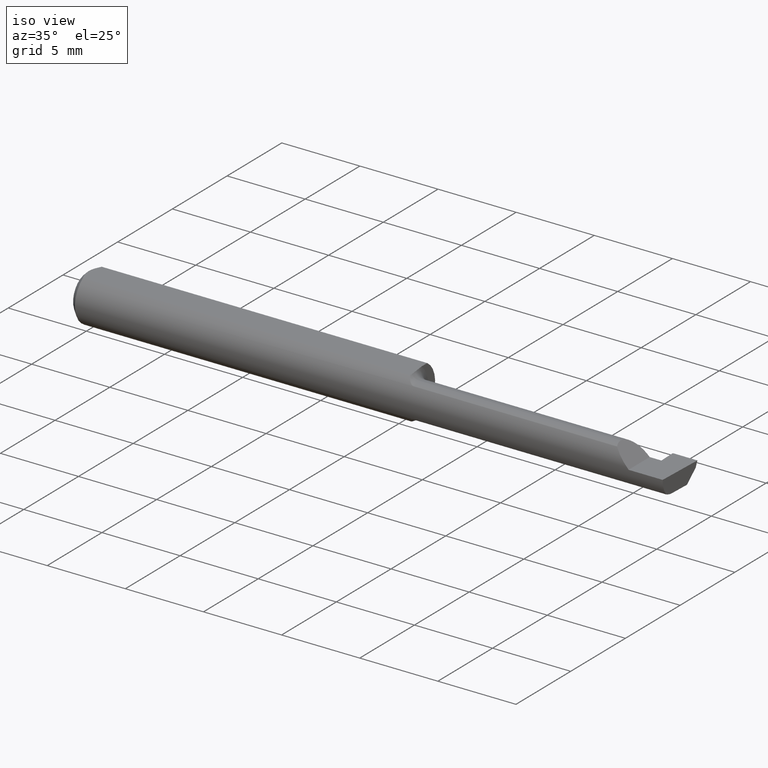
[diagram: clean part render]
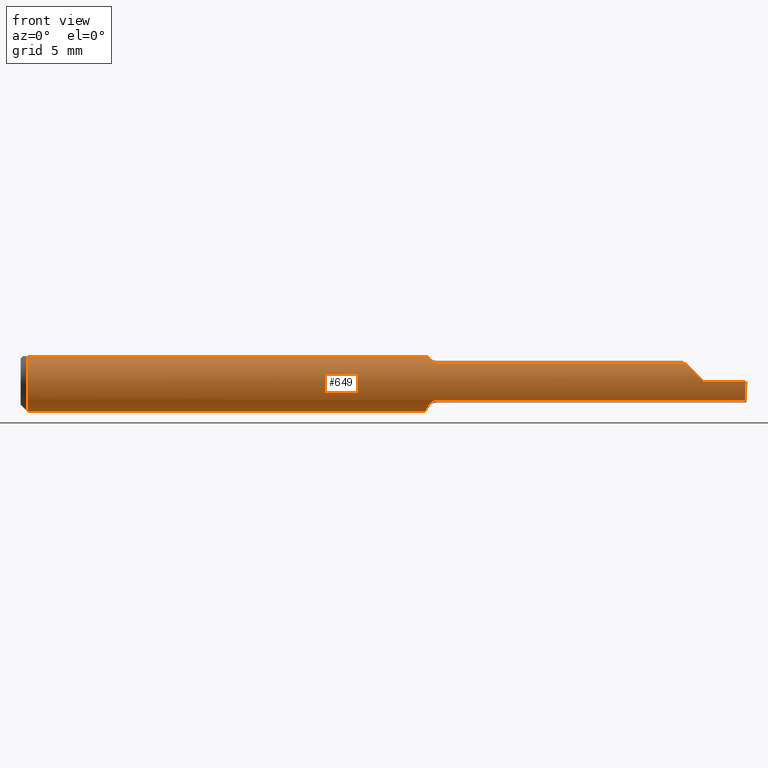
[diagram: tour spotlight — one face highlighted and labeled with its STEP entity id]
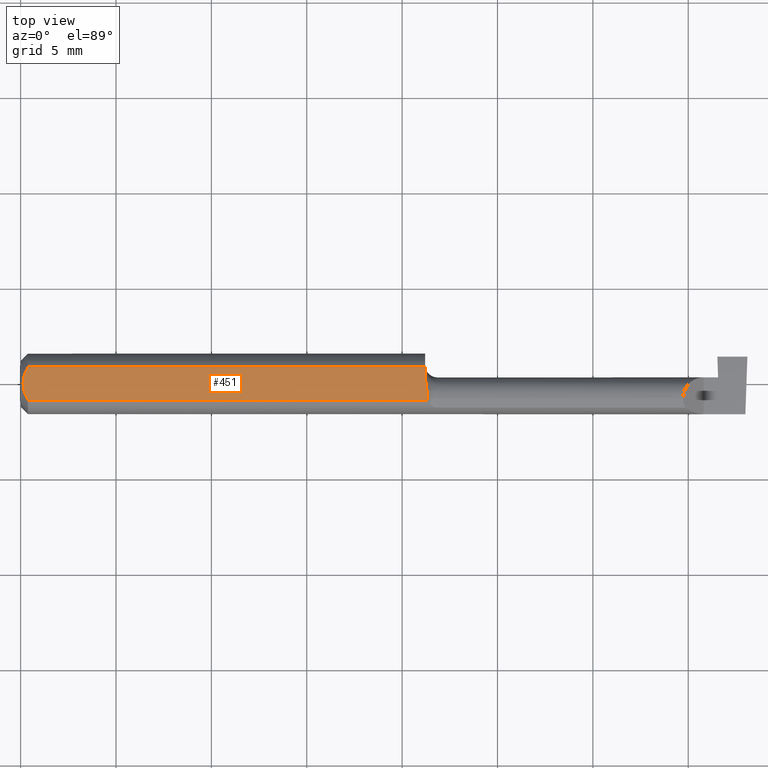
[diagram: tour spotlight — one face highlighted and labeled with its STEP entity id]
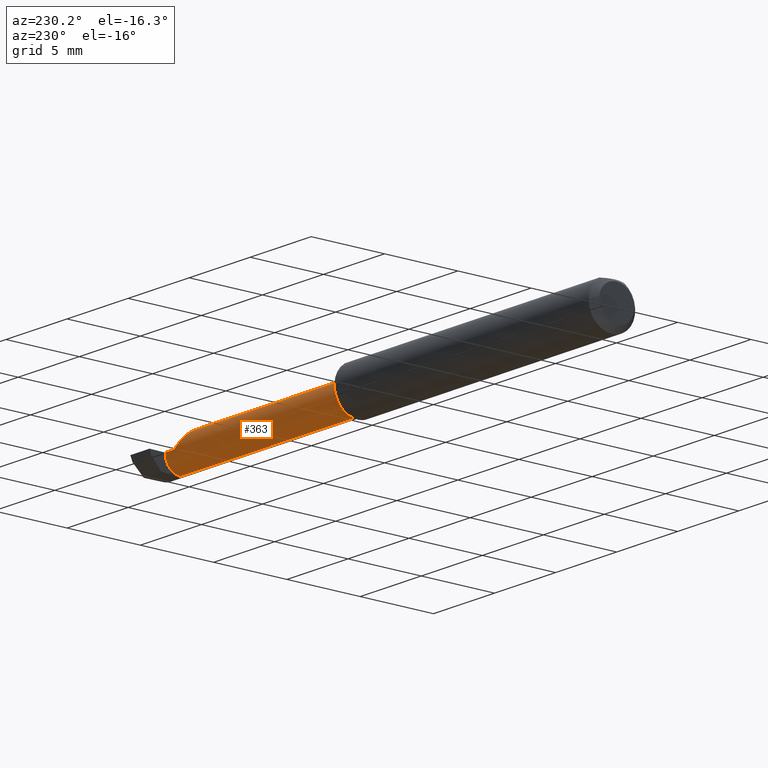
[diagram: tour spotlight — one face highlighted and labeled with its STEP entity id]
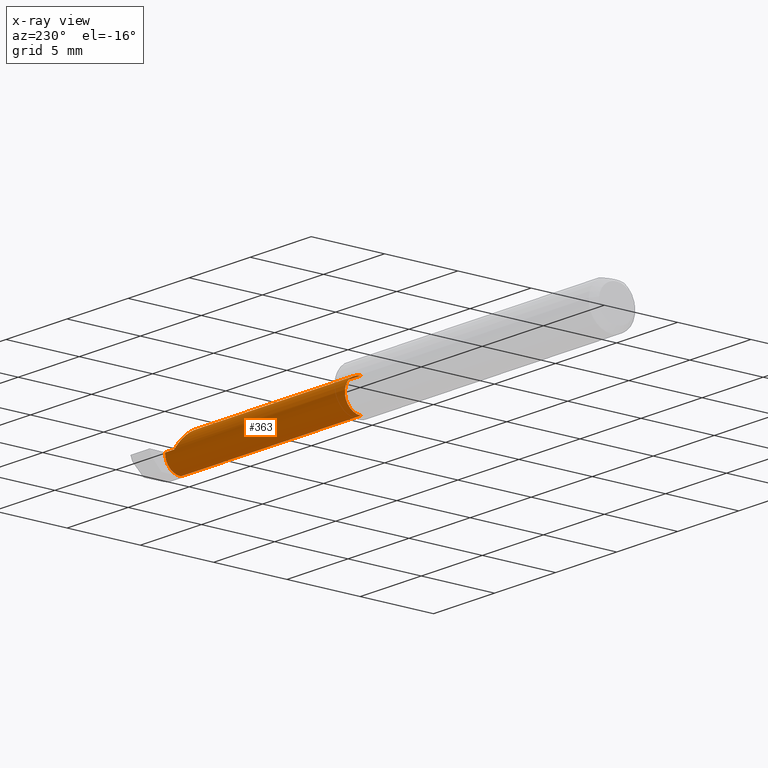
[diagram: x-ray of the same camera — body ghosted, this tour face saturated]
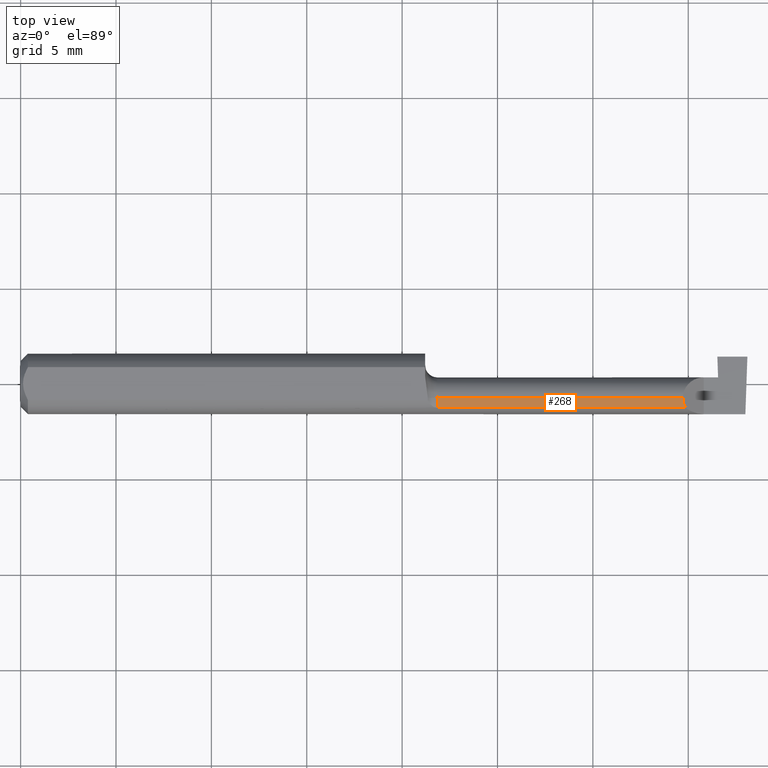
[diagram: tour spotlight — one face highlighted and labeled with its STEP entity id]
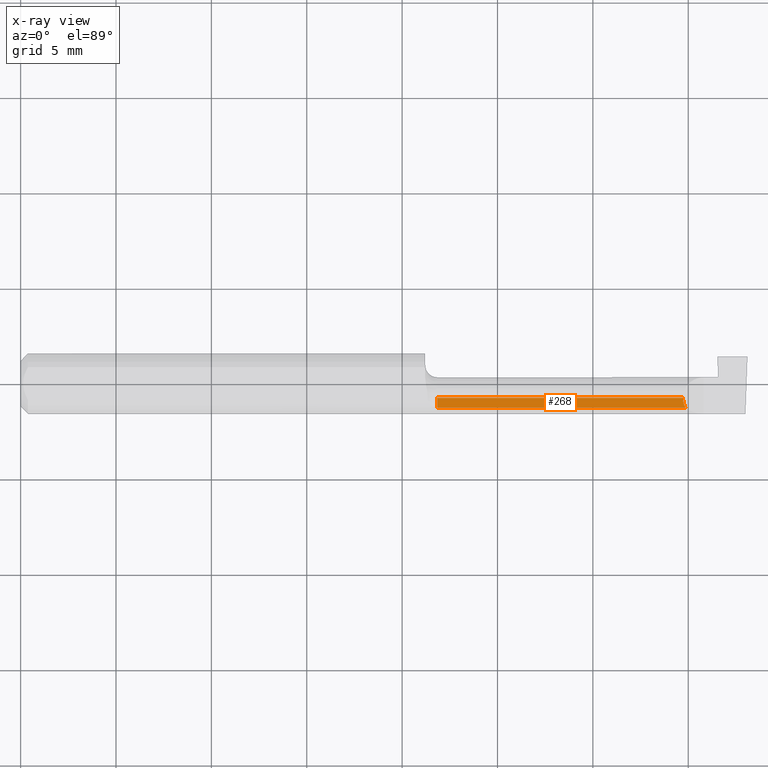
[diagram: x-ray of the same camera — body ghosted, this tour face saturated]
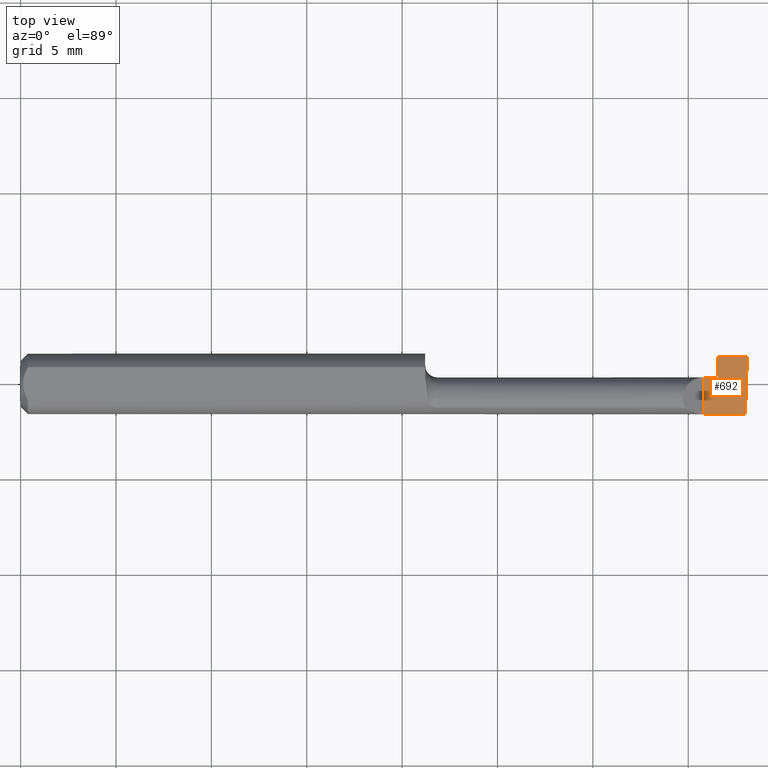
[diagram: tour spotlight — one face highlighted and labeled with its STEP entity id]
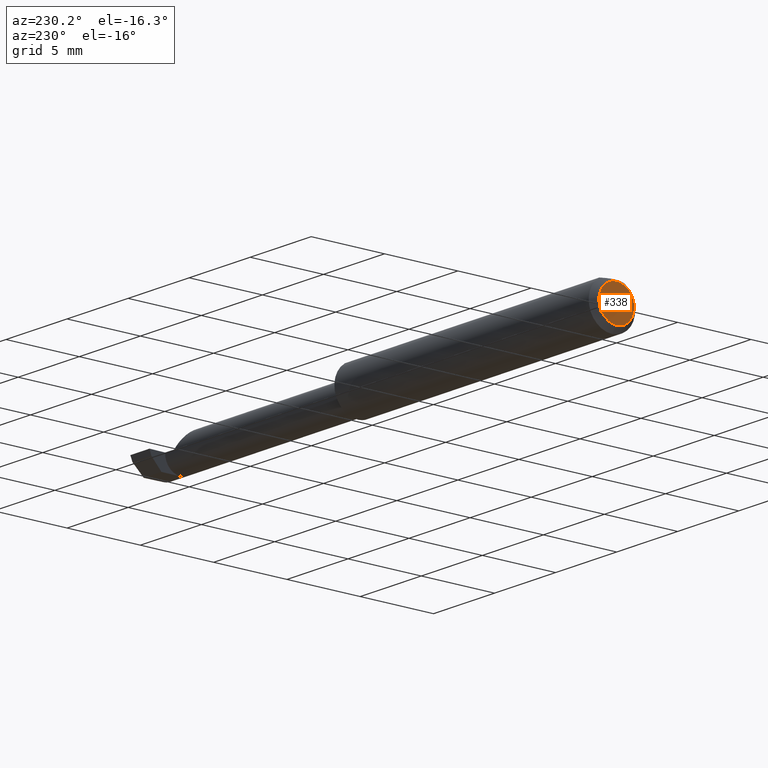
[diagram: tour spotlight — one face highlighted and labeled with its STEP entity id]
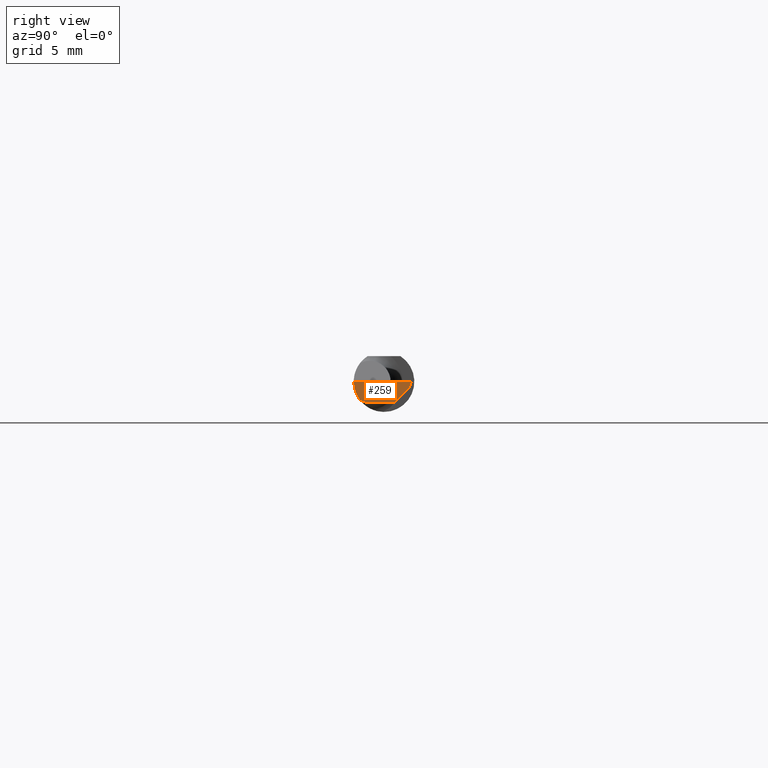
[diagram: tour spotlight — one face highlighted and labeled with its STEP entity id]
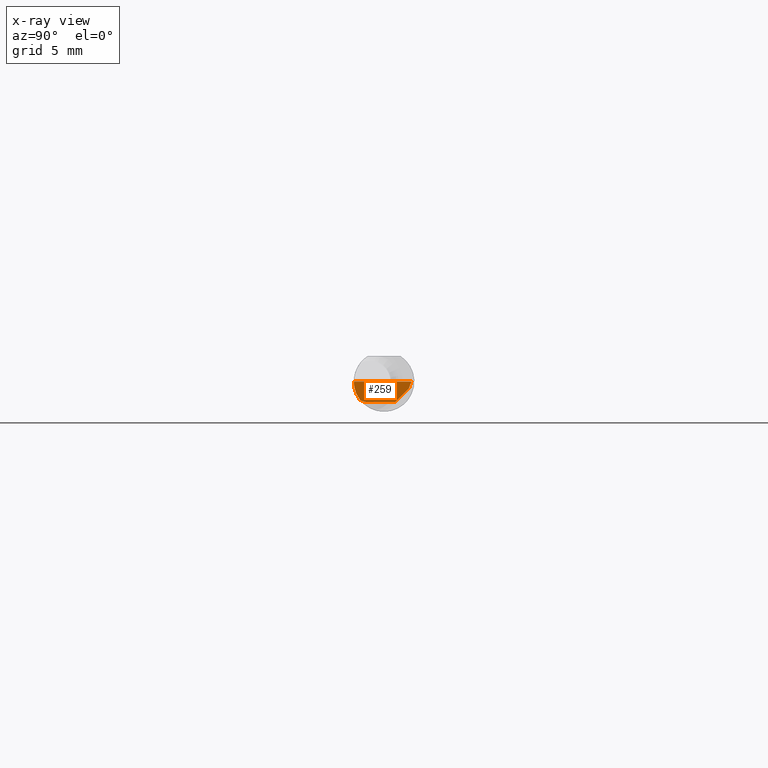
[diagram: x-ray of the same camera — body ghosted, this tour face saturated]
A machine part: a face-by-face anatomy tour. The part has 20 B-rep faces; the first image is the clean iso view, then the 7 largest visible faces are spotlighted one at a time (largest first), each with its STEP entity span.

Face 1 — front view, entity #649. In plain terms, the highlighted cylindrical surface (edge-blend (fillet) strip) has radius 1.5875 mm, axis along (-1, -0, -0).
Definition (entity closure, byte-faithful):
#15 = B_SPLINE_CURVE_WITH_KNOTS ( 'NONE', 3,
 ( #288, #283, #505, #170, #275, #552, #679, #543 ),
 .UNSPECIFIED., .F., .F.,
 ( 4, 2, 2, 4 ),
 ( 1.967049449814725034E-07, 0.0002302603140701875353, 0.0004603239231953935623, 0.0009204511414458118506 ),
 .UNSPECIFIED. ) ;
#19 = CARTESIAN_POINT ( 'NONE',  ( 0.8349999999999998535, -0.007349427763250804095, -0.06224931325325608333 ) ) ;
#20 =( BOUNDED_CURVE ( )  B_SPLINE_CURVE ( 3, ( #385, #614, #506, #284 ),
 .UNSPECIFIED., .F., .F. ) 
 B_SPLINE_CURVE_WITH_KNOTS ( ( 4, 4 ),
 ( 6.273290845822960371, 6.925979714601155912 ),
 .UNSPECIFIED. ) 
 CURVE ( )  GEOMETRIC_REPRESENTATION_ITEM ( )  RATIONAL_B_SPLINE_CURVE ( ( 1.000000000000000000, 0.9648137202604427642, 0.9648137202604427642, 1.000000000000000000 ) ) 
 REPRESENTATION_ITEM ( '' )  );
#29 = EDGE_CURVE ( 'NONE', #681, #83, #429, .T. ) ;
#40 = AXIS2_PLACEMENT_3D ( 'NONE', #687, #314, #201 ) ;
#46 = CARTESIAN_POINT ( 'NONE',  ( 0.8349999999999999645, 0.03391164991562634068, 0.05250000000000000500 ) ) ;
#49 = CIRCLE ( 'NONE', #40, 0.06250000000000000000 ) ;
#50 = EDGE_CURVE ( 'NONE', #632, #462, #211, .T. ) ;
#51 = LINE ( 'NONE', #158, #324 ) ;
#52 = VERTEX_POINT ( 'NONE', #530 ) ;
#53 = CARTESIAN_POINT ( 'NONE',  ( 1.149000000000000021, -0.04961864406779661202, 0.03800315988011145063 ) ) ;
#54 = CARTESIAN_POINT ( 'NONE',  ( 0.8420045765340889998, -0.03797736612365415487, 0.04987380676756331122 ) ) ;
#79 = VERTEX_POINT ( 'NONE', #172 ) ;
#83 = VERTEX_POINT ( 'NONE', #222 ) ;
#87 = CARTESIAN_POINT ( 'NONE',  ( 2.249639673992780117E-32, -0.06250000000000000000, 1.836970198721027469E-16 ) ) ;
#92 = CARTESIAN_POINT ( 'NONE',  ( 0.8352519097259802905, -0.01202796067517315250, -0.06151168109569451342 ) ) ;
#93 = ORIENTED_EDGE ( 'NONE', *, *, #274, .F. ) ;
#94 =( BOUNDED_CURVE ( )  B_SPLINE_CURVE ( 3, ( #472, #272, #419, #427 ),
 .UNSPECIFIED., .F., .T. ) 
 B_SPLINE_CURVE_WITH_KNOTS ( ( 4, 4 ),
 ( 4.712388980384689674, 5.365991724391927953 ),
 .UNSPECIFIED. ) 
 CURVE ( )  GEOMETRIC_REPRESENTATION_ITEM ( )  RATIONAL_B_SPLINE_CURVE ( ( 1.000000000000000000, 0.9647159968557095233, 0.9647159968557095233, 1.000000000000000000 ) ) 
 REPRESENTATION_ITEM ( '' )  );
#98 = CARTESIAN_POINT ( 'NONE',  ( 0.8573935569295082493, -0.04961864406782530434, 0.03800315988007407081 ) ) ;
#100 = VERTEX_POINT ( 'NONE', #390 ) ;
#111 = LINE ( 'NONE', #53, #648 ) ;
#112 = DIRECTION ( 'NONE',  ( 0.02616100201822768243, -0.0009135623211514313276, 0.9996573249755575929 ) ) ;
#122 = CARTESIAN_POINT ( 'NONE',  ( 1.495842932763845390, -0.06249997390100387601, -5.711719386471155157E-05 ) ) ;
#124 = EDGE_CURVE ( 'NONE', #681, #549, #20, .T. ) ;
#141 = VECTOR ( 'NONE', #653, 39.37007874015748143 ) ;
#148 = ORIENTED_EDGE ( 'NONE', *, *, #367, .T. ) ;
#152 = ORIENTED_EDGE ( 'NONE', *, *, #560, .F. ) ;
#158 = CARTESIAN_POINT ( 'NONE',  ( 0.000000000000000000, -0.03391164991562636150, 0.05249999999999998418 ) ) ;
#159 = ORIENTED_EDGE ( 'NONE', *, *, #234, .F. ) ;
#170 = CARTESIAN_POINT ( 'NONE',  ( 0.8493582107592305697, -0.04628042898199348498, -0.04204840831133670881 ) ) ;
#172 = CARTESIAN_POINT ( 'NONE',  ( 1.371996840119888761, -0.04961864406779655651, 0.03800315988011148532 ) ) ;
#178 = ORIENTED_EDGE ( 'NONE', *, *, #50, .F. ) ;
#180 = CYLINDRICAL_SURFACE ( 'NONE', #401, 0.06250000000000000000 ) ;
#185 = CARTESIAN_POINT ( 'NONE',  ( 0.01499999999999999944, 0.000000000000000000, 0.000000000000000000 ) ) ;
#191 = EDGE_CURVE ( 'NONE', #549, #312, #298, .T. ) ;
#193 = DIRECTION ( 'NONE',  ( -1.000000000000000000, -0.000000000000000000, -0.000000000000000000 ) ) ;
#196 = CARTESIAN_POINT ( 'NONE',  ( 1.495298500941084185, -0.04961864406779661202, -0.03800315988011145063 ) ) ;
#197 = CARTESIAN_POINT ( 'NONE',  ( 0.8349999999999999645, -0.002584745762711872230, -0.06244652984227500730 ) ) ;
#201 = DIRECTION ( 'NONE',  ( 0.000000000000000000, 0.000000000000000000, -1.000000000000000000 ) ) ;
#209 = AXIS2_PLACEMENT_3D ( 'NONE', #417, #193, #642 ) ;
#211 = B_SPLINE_CURVE_WITH_KNOTS ( 'NONE', 3,
 ( #709, #54, #276, #488, #372, #589, #98, #319 ),
 .UNSPECIFIED., .F., .F.,
 ( 4, 2, 2, 4 ),
 ( 3.888235372658501606E-07, 0.0003893917635814275247, 0.0005838932336035082158, 0.0007783947036255888527 ),
 .UNSPECIFIED. ) ;
#219 = ORIENTED_EDGE ( 'NONE', *, *, #615, .F. ) ;
#220 = CARTESIAN_POINT ( 'NONE',  ( 0.000000000000000000, 0.000000000000000000, 0.000000000000000000 ) ) ;
#222 = CARTESIAN_POINT ( 'NONE',  ( 0.8600000000000000977, -0.04961864406779661202, -0.03800315988011145063 ) ) ;
#229 = CARTESIAN_POINT ( 'NONE',  ( 0.8402401474686986838, -0.03391164991562650721, 0.05250000000000000500 ) ) ;
#232 = ORIENTED_EDGE ( 'NONE', *, *, #310, .T. ) ;
#234 = EDGE_CURVE ( 'NONE', #258, #374, #49, .T. ) ;
#235 = FACE_OUTER_BOUND ( 'NONE', #493, .T. ) ;
#236 = AXIS2_PLACEMENT_3D ( 'NONE', #185, #362, #400 ) ;
#258 = VERTEX_POINT ( 'NONE', #461 ) ;
#261 = ORIENTED_EDGE ( 'NONE', *, *, #309, .F. ) ;
#272 = CARTESIAN_POINT ( 'NONE',  ( 1.396135153618661251, -0.06250000000000001388, 0.01386484638133879746 ) ) ;
#274 = EDGE_CURVE ( 'NONE', #414, #500, #610, .T. ) ;
#275 = CARTESIAN_POINT ( 'NONE',  ( 0.8474551391321255567, -0.04467521257567296650, -0.04378099277185587557 ) ) ;
#276 = CARTESIAN_POINT ( 'NONE',  ( 0.8442468641874942836, -0.04154820402037479737, 0.04686879970594851064 ) ) ;
#283 = CARTESIAN_POINT ( 'NONE',  ( 0.8569304295622108825, -0.04961864406779671610, -0.03800315988011131185 ) ) ;
#284 = CARTESIAN_POINT ( 'NONE',  ( 1.495842932763845390, -0.06249997390100387601, -5.711719386471155157E-05 ) ) ;
#286 = EDGE_CURVE ( 'NONE', #52, #258, #444, .T. ) ;
#288 = CARTESIAN_POINT ( 'NONE',  ( 0.8600000000000000977, -0.04961864406779661202, -0.03800315988011145063 ) ) ;
#298 = LINE ( 'NONE', #605, #416 ) ;
#304 = VECTOR ( 'NONE', #307, 39.37007874015748143 ) ;
#307 = DIRECTION ( 'NONE',  ( -1.000000000000000000, -0.000000000000000000, -0.000000000000000000 ) ) ;
#309 = EDGE_CURVE ( 'NONE', #537, #414, #536, .T. ) ;
#310 = EDGE_CURVE ( 'NONE', #312, #100, #581, .T. ) ;
#312 = VERTEX_POINT ( 'NONE', #628 ) ;
#314 = DIRECTION ( 'NONE',  ( 1.000000000000000000, 0.000000000000000000, 0.000000000000000000 ) ) ;
#319 = CARTESIAN_POINT ( 'NONE',  ( 0.8600000000000000977, -0.04961864406779661202, 0.03800315988011145063 ) ) ;
#322 = DIRECTION ( 'NONE',  ( 1.000000000000000000, 0.000000000000000000, 0.000000000000000000 ) ) ;
#324 = VECTOR ( 'NONE', #322, 39.37007874015748143 ) ;
#326 = ORIENTED_EDGE ( 'NONE', *, *, #464, .F. ) ;
#362 = DIRECTION ( 'NONE',  ( -1.000000000000000000, -0.000000000000000000, -0.000000000000000000 ) ) ;
#367 = EDGE_CURVE ( 'NONE', #100, #79, #94, .T. ) ;
#372 = CARTESIAN_POINT ( 'NONE',  ( 0.8507130697016346277, -0.04711875003426051201, 0.04108804531767328017 ) ) ;
#374 = VERTEX_POINT ( 'NONE', #46 ) ;
#379 = ORIENTED_EDGE ( 'NONE', *, *, #396, .F. ) ;
#385 = CARTESIAN_POINT ( 'NONE',  ( 1.495298500941084185, -0.04961864406779661202, -0.03800315988011145063 ) ) ;
#390 = CARTESIAN_POINT ( 'NONE',  ( 1.409999999999999920, -0.06250000000000000000, 1.102182119232617911E-17 ) ) ;
#396 = EDGE_CURVE ( 'NONE', #500, #632, #51, .T. ) ;
#400 = DIRECTION ( 'NONE',  ( 0.000000000000000000, 0.000000000000000000, 1.000000000000000000 ) ) ;
#401 = AXIS2_PLACEMENT_3D ( 'NONE', #220, #434, #689 ) ;
#414 = VERTEX_POINT ( 'NONE', #431 ) ;
#416 = VECTOR ( 'NONE', #112, 39.37007874015748854 ) ;
#417 = CARTESIAN_POINT ( 'NONE',  ( 0.01499999999999999944, 0.000000000000000000, 0.000000000000000000 ) ) ;
#419 = CARTESIAN_POINT ( 'NONE',  ( 1.383004118162293850, -0.05804917164768785831, 0.02699588183770621277 ) ) ;
#421 = LINE ( 'NONE', #702, #141 ) ;
#427 = CARTESIAN_POINT ( 'NONE',  ( 1.371996840119888761, -0.04961864406779655651, 0.03800315988011148532 ) ) ;
#429 = LINE ( 'NONE', #652, #430 ) ;
#430 = VECTOR ( 'NONE', #645, 39.37007874015748143 ) ;
#431 = CARTESIAN_POINT ( 'NONE',  ( 0.01499999999999999944, 0.000000000000000000, -0.06250000000000000000 ) ) ;
#434 = DIRECTION ( 'NONE',  ( -1.000000000000000000, -0.000000000000000000, -0.000000000000000000 ) ) ;
#441 = ORIENTED_EDGE ( 'NONE', *, *, #29, .F. ) ;
#444 = B_SPLINE_CURVE_WITH_KNOTS ( 'NONE', 3,
 ( #453, #586, #690, #92, #19, #197 ),
 .UNSPECIFIED., .F., .F.,
 ( 4, 2, 4 ),
 ( 0.0009204511414458118506, 0.001283705467946032620, 0.001646959794446253280 ),
 .UNSPECIFIED. ) ;
#445 = CARTESIAN_POINT ( 'NONE',  ( 0.01499999999999999944, -0.03391164991562636150, 0.05249999999999998418 ) ) ;
#447 = ORIENTED_EDGE ( 'NONE', *, *, #124, .T. ) ;
#453 = CARTESIAN_POINT ( 'NONE',  ( 0.8385853400962793858, -0.02949999999999961334, -0.05509990925582384375 ) ) ;
#461 = CARTESIAN_POINT ( 'NONE',  ( 0.8349999999999999645, -0.002584745762711872230, -0.06244652984227500730 ) ) ;
#462 = VERTEX_POINT ( 'NONE', #474 ) ;
#464 = EDGE_CURVE ( 'NONE', #374, #537, #421, .T. ) ;
#472 = CARTESIAN_POINT ( 'NONE',  ( 1.409999999999999920, -0.06250000000000000000, 1.102182119232617911E-17 ) ) ;
#473 = ORIENTED_EDGE ( 'NONE', *, *, #191, .T. ) ;
#474 = CARTESIAN_POINT ( 'NONE',  ( 0.8600000000000000977, -0.04961864406779661202, 0.03800315988011145063 ) ) ;
#478 = ORIENTED_EDGE ( 'NONE', *, *, #286, .F. ) ;
#488 = CARTESIAN_POINT ( 'NONE',  ( 0.8489222550994095506, -0.04585862128403021126, 0.04251363034047601214 ) ) ;
#493 = EDGE_LOOP ( 'NONE', ( #447, #473, #232, #148, #152, #178, #379, #93, #261, #326, #159, #478, #219, #441 ) ) ;
#500 = VERTEX_POINT ( 'NONE', #445 ) ;
#505 = CARTESIAN_POINT ( 'NONE',  ( 0.8540847360483325712, -0.04877754693342482850, -0.03912413147191602658 ) ) ;
#506 = CARTESIAN_POINT ( 'NONE',  ( 1.495480616183712197, -0.06248732152722600436, -0.01390186301200442912 ) ) ;
#530 = CARTESIAN_POINT ( 'NONE',  ( 0.8385853400962793858, -0.02949999999999961334, -0.05509990925582384375 ) ) ;
#536 = CIRCLE ( 'NONE', #236, 0.06250000000000000000 ) ;
#537 = VERTEX_POINT ( 'NONE', #669 ) ;
#543 = CARTESIAN_POINT ( 'NONE',  ( 0.8385853400962793858, -0.02949999999999961334, -0.05509990925582384375 ) ) ;
#549 = VERTEX_POINT ( 'NONE', #122 ) ;
#552 = CARTESIAN_POINT ( 'NONE',  ( 0.8424761956735888901, -0.03914831413394386644, -0.04898223440752281360 ) ) ;
#560 = EDGE_CURVE ( 'NONE', #462, #79, #111, .T. ) ;
#581 = LINE ( 'NONE', #87, #304 ) ;
#586 = CARTESIAN_POINT ( 'NONE',  ( 0.8372891653901286535, -0.02548106644410355962, -0.05725161043827910190 ) ) ;
#589 = CARTESIAN_POINT ( 'NONE',  ( 0.8548934400651080345, -0.04899547455819875524, 0.03883101267846612165 ) ) ;
#605 = CARTESIAN_POINT ( 'NONE',  ( 1.494536378329570425, -0.06245432188394240552, -0.04998286624877784634 ) ) ;
#610 = CIRCLE ( 'NONE', #209, 0.06250000000000000000 ) ;
#614 = CARTESIAN_POINT ( 'NONE',  ( 1.495292520522919943, -0.05803695300436750165, -0.02701183505096050458 ) ) ;
#615 = EDGE_CURVE ( 'NONE', #83, #52, #15, .T. ) ;
#628 = CARTESIAN_POINT ( 'NONE',  ( 1.495844428430481710, -0.06249999999999996531, -4.014002452596986816E-18 ) ) ;
#632 = VERTEX_POINT ( 'NONE', #229 ) ;
#642 = DIRECTION ( 'NONE',  ( 0.000000000000000000, 0.000000000000000000, 1.000000000000000000 ) ) ;
#645 = DIRECTION ( 'NONE',  ( -1.000000000000000000, -0.000000000000000000, -0.000000000000000000 ) ) ;
#648 = VECTOR ( 'NONE', #716, 39.37007874015748143 ) ;
#649 = ADVANCED_FACE ( 'NONE', ( #235 ), #180, .T. ) ;
#652 = CARTESIAN_POINT ( 'NONE',  ( 1.149000000000000021, -0.04961864406779661202, -0.03800315988011145063 ) ) ;
#653 = DIRECTION ( 'NONE',  ( -1.000000000000000000, -0.000000000000000000, -0.000000000000000000 ) ) ;
#669 = CARTESIAN_POINT ( 'NONE',  ( 0.01499999999999999771, 0.03391164991562633374, 0.05250000000000000500 ) ) ;
#679 = CARTESIAN_POINT ( 'NONE',  ( 0.8402271794864767385, -0.03459070527865122646, -0.05237439105173811310 ) ) ;
#681 = VERTEX_POINT ( 'NONE', #196 ) ;
#687 = CARTESIAN_POINT ( 'NONE',  ( 0.8349999999999999645, 0.000000000000000000, 0.000000000000000000 ) ) ;
#689 = DIRECTION ( 'NONE',  ( 0.000000000000000000, 0.000000000000000000, 1.000000000000000000 ) ) ;
#690 = CARTESIAN_POINT ( 'NONE',  ( 0.8363937318049208258, -0.02109576779706041211, -0.05901971984239202246 ) ) ;
#702 = CARTESIAN_POINT ( 'NONE',  ( 0.000000000000000000, 0.03391164991562636150, 0.05249999999999998418 ) ) ;
#709 = CARTESIAN_POINT ( 'NONE',  ( 0.8402401474686986838, -0.03391164991562650721, 0.05250000000000000500 ) ) ;
#716 = DIRECTION ( 'NONE',  ( 1.000000000000000000, 0.000000000000000000, 0.000000000000000000 ) ) ;

Face 2 — top view, entity #451. In plain terms, the highlighted planar face has unit normal (0, -0, 1).
Definition (entity closure, byte-faithful):
#4 = CARTESIAN_POINT ( 'NONE',  ( 0.8403849547540666043, -0.03023591544404563569, 0.05250000000000001193 ) ) ;
#14 = CARTESIAN_POINT ( 'NONE',  ( 0.8349999999999999645, -0.06250000000000001388, 0.05250000000000000500 ) ) ;
#32 = ORIENTED_EDGE ( 'NONE', *, *, #585, .T. ) ;
#35 = CARTESIAN_POINT ( 'NONE',  ( 0.004999999999989314207, 8.235553591830799656E-16, 0.05250000000000000500 ) ) ;
#36 = ORIENTED_EDGE ( 'NONE', *, *, #396, .T. ) ;
#38 = CARTESIAN_POINT ( 'NONE',  ( 0.8403849547540671594, -0.02222494637838565504, 0.05250000000000000500 ) ) ;
#41 = CARTESIAN_POINT ( 'NONE',  ( 1.500000000000000222, -0.06250000000000001388, 0.05250000000000000500 ) ) ;
#46 = CARTESIAN_POINT ( 'NONE',  ( 0.8349999999999999645, 0.03391164991562634068, 0.05250000000000000500 ) ) ;
#51 = LINE ( 'NONE', #158, #324 ) ;
#99 = CARTESIAN_POINT ( 'NONE',  ( 0.8362098179869770220, -0.0002889899750472457642, 0.05250000000000001193 ) ) ;
#101 = DIRECTION ( 'NONE',  ( 1.000000000000000000, 0.000000000000000000, -0.000000000000000000 ) ) ;
#104 = EDGE_CURVE ( 'NONE', #194, #374, #662, .T. ) ;
#109 = CARTESIAN_POINT ( 'NONE',  ( 0.8350000000000000755, 0.006622688445287742282, 0.05250000000000000500 ) ) ;
#141 = VECTOR ( 'NONE', #653, 39.37007874015748143 ) ;
#147 = CARTESIAN_POINT ( 'NONE',  ( 0.006056885874551373727, -0.01188654981375985957, 0.05250000000000001193 ) ) ;
#157 = ORIENTED_EDGE ( 'NONE', *, *, #388, .T. ) ;
#158 = CARTESIAN_POINT ( 'NONE',  ( 0.000000000000000000, -0.03391164991562636150, 0.05249999999999998418 ) ) ;
#174 = CARTESIAN_POINT ( 'NONE',  ( 0.004999999999999040802, 0.005952453510029875015, 0.05249999999999999806 ) ) ;
#176 = CARTESIAN_POINT ( 'NONE',  ( 0.8349999999999999645, 0.01371747331809206050, 0.05250000000000000500 ) ) ;
#182 = DIRECTION ( 'NONE',  ( -0.000000000000000000, 1.000000000000000000, 0.000000000000000000 ) ) ;
#188 = CARTESIAN_POINT ( 'NONE',  ( 0.8403849547540671594, -0.02950000000000013375, 0.05250000000000000500 ) ) ;
#194 = VERTEX_POINT ( 'NONE', #176 ) ;
#199 = AXIS2_PLACEMENT_3D ( 'NONE', #41, #265, #101 ) ;
#208 = VERTEX_POINT ( 'NONE', #226 ) ;
#226 = CARTESIAN_POINT ( 'NONE',  ( 0.004999999999989314207, 8.235553591830799656E-16, 0.05250000000000000500 ) ) ;
#229 = CARTESIAN_POINT ( 'NONE',  ( 0.8402401474686986838, -0.03391164991562650721, 0.05250000000000000500 ) ) ;
#241 = EDGE_CURVE ( 'NONE', #208, #500, #413, .T. ) ;
#262 = CARTESIAN_POINT ( 'NONE',  ( 0.8349999999999999645, 0.01371747331809206050, 0.05250000000000000500 ) ) ;
#263 = VECTOR ( 'NONE', #182, 39.37007874015748143 ) ;
#265 = DIRECTION ( 'NONE',  ( 0.000000000000000000, -0.000000000000000000, 1.000000000000000000 ) ) ;
#322 = DIRECTION ( 'NONE',  ( 1.000000000000000000, 0.000000000000000000, 0.000000000000000000 ) ) ;
#324 = VECTOR ( 'NONE', #322, 39.37007874015748143 ) ;
#325 = CARTESIAN_POINT ( 'NONE',  ( 0.8390045281090320328, -0.01491326039667821048, 0.05250000000000001193 ) ) ;
#332 = CARTESIAN_POINT ( 'NONE',  ( 0.8402401474686986838, -0.03391164991562650721, 0.05250000000000000500 ) ) ;
#340 = CARTESIAN_POINT ( 'NONE',  ( 0.8403604307877770019, -0.03170709554003017100, 0.05249999999999999806 ) ) ;
#343 = B_SPLINE_CURVE_WITH_KNOTS ( 'NONE', 3,
 ( #588, #38, #325, #99, #109, #262 ),
 .UNSPECIFIED., .F., .F.,
 ( 4, 2, 4 ),
 ( 0.008344303586568494260, 0.008884272709220805697, 0.009424241831873118869 ),
 .UNSPECIFIED. ) ;
#344 = ORIENTED_EDGE ( 'NONE', *, *, #241, .T. ) ;
#346 = CARTESIAN_POINT ( 'NONE',  ( 0.004999999999989314207, 8.235553591830799656E-16, 0.05250000000000000500 ) ) ;
#374 = VERTEX_POINT ( 'NONE', #46 ) ;
#381 = PLANE ( 'NONE',  #199 ) ;
#388 = EDGE_CURVE ( 'NONE', #696, #194, #343, .T. ) ;
#392 = CARTESIAN_POINT ( 'NONE',  ( 0.006063917085846147297, 0.01190810954070469288, 0.05250000000000001887 ) ) ;
#396 = EDGE_CURVE ( 'NONE', #500, #632, #51, .T. ) ;
#397 = ORIENTED_EDGE ( 'NONE', *, *, #464, .T. ) ;
#403 = CARTESIAN_POINT ( 'NONE',  ( 0.01216049014016022493, -0.02867836381244416935, 0.05250000000000000500 ) ) ;
#413 = B_SPLINE_CURVE_WITH_KNOTS ( 'NONE', 3,
 ( #35, #583, #147, #631, #403, #698 ),
 .UNSPECIFIED., .F., .F.,
 ( 4, 2, 4 ),
 ( 0.001877944590463637717, 0.002327931134338583757, 0.002777917678213529581 ),
 .UNSPECIFIED. ) ;
#421 = LINE ( 'NONE', #702, #141 ) ;
#445 = CARTESIAN_POINT ( 'NONE',  ( 0.01499999999999999944, -0.03391164991562636150, 0.05249999999999998418 ) ) ;
#451 = ADVANCED_FACE ( 'NONE', ( #529 ), #381, .T. ) ;
#464 = EDGE_CURVE ( 'NONE', #374, #537, #421, .T. ) ;
#500 = VERTEX_POINT ( 'NONE', #445 ) ;
#507 = EDGE_LOOP ( 'NONE', ( #36, #32, #157, #703, #397, #515, #344 ) ) ;
#515 = ORIENTED_EDGE ( 'NONE', *, *, #525, .T. ) ;
#525 = EDGE_CURVE ( 'NONE', #537, #208, #532, .T. ) ;
#529 = FACE_OUTER_BOUND ( 'NONE', #507, .T. ) ;
#532 = B_SPLINE_CURVE_WITH_KNOTS ( 'NONE', 3,
 ( #546, #664, #604, #392, #174, #346 ),
 .UNSPECIFIED., .F., .F.,
 ( 4, 2, 4 ),
 ( 0.0009797930073890425730, 0.001428868798926340253, 0.001877944590463637717 ),
 .UNSPECIFIED. ) ;
#537 = VERTEX_POINT ( 'NONE', #669 ) ;
#546 = CARTESIAN_POINT ( 'NONE',  ( 0.01499999999999999771, 0.03391164991562633374, 0.05250000000000000500 ) ) ;
#569 = B_SPLINE_CURVE_WITH_KNOTS ( 'NONE', 3,
 ( #332, #613, #340, #4, #608 ),
 .UNSPECIFIED., .F., .F.,
 ( 4, 1, 4 ),
 ( 0.008235061335628403659, 0.008289682461098448960, 0.008344303586568494260 ),
 .UNSPECIFIED. ) ;
#583 = CARTESIAN_POINT ( 'NONE',  ( 0.004999999999998634009, -0.005964525438754507587, 0.05250000000000000500 ) ) ;
#585 = EDGE_CURVE ( 'NONE', #632, #696, #569, .T. ) ;
#588 = CARTESIAN_POINT ( 'NONE',  ( 0.8403849547540671594, -0.02950000000000013375, 0.05250000000000000500 ) ) ;
#604 = CARTESIAN_POINT ( 'NONE',  ( 0.009668628632509970039, 0.02325858892916567860, 0.05250000000000001193 ) ) ;
#608 = CARTESIAN_POINT ( 'NONE',  ( 0.8403849547540671594, -0.02950000000000013375, 0.05250000000000000500 ) ) ;
#613 = CARTESIAN_POINT ( 'NONE',  ( 0.8402878264274470377, -0.03317699972735686093, 0.05250000000000000500 ) ) ;
#631 = CARTESIAN_POINT ( 'NONE',  ( 0.009676924495017957123, -0.02328413057436891712, 0.05250000000000001193 ) ) ;
#632 = VERTEX_POINT ( 'NONE', #229 ) ;
#653 = DIRECTION ( 'NONE',  ( -1.000000000000000000, -0.000000000000000000, -0.000000000000000000 ) ) ;
#662 = LINE ( 'NONE', #14, #263 ) ;
#664 = CARTESIAN_POINT ( 'NONE',  ( 0.01218419045468773464, 0.02872204407162096823, 0.05250000000000001193 ) ) ;
#669 = CARTESIAN_POINT ( 'NONE',  ( 0.01499999999999999771, 0.03391164991562633374, 0.05250000000000000500 ) ) ;
#696 = VERTEX_POINT ( 'NONE', #188 ) ;
#698 = CARTESIAN_POINT ( 'NONE',  ( 0.01499999999999999944, -0.03391164991562636150, 0.05249999999999998418 ) ) ;
#702 = CARTESIAN_POINT ( 'NONE',  ( 0.000000000000000000, 0.03391164991562636150, 0.05249999999999998418 ) ) ;
#703 = ORIENTED_EDGE ( 'NONE', *, *, #104, .T. ) ;

Face 3 — auxiliary view, entity #363. An x-ray twin of the same camera follows (body ghosted, this face saturated) — the face is partly hidden behind the body. In plain terms, the highlighted cylindrical surface (edge-blend (fillet) strip) has radius 1.0922 mm, axis along (-1, -0, -0).
Definition (entity closure, byte-faithful):
#8 = CARTESIAN_POINT ( 'NONE',  ( 0.8600000000000000977, -0.02949999999999999498, -0.04299999999999998962 ) ) ;
#42 = VERTEX_POINT ( 'NONE', #321 ) ;
#84 = AXIS2_PLACEMENT_3D ( 'NONE', #151, #371, #373 ) ;
#96 = VECTOR ( 'NONE', #516, 39.37007874015748143 ) ;
#115 = CARTESIAN_POINT ( 'NONE',  ( 1.367000000000000215, -0.004311183182043082547, 0.04300000000000000350 ) ) ;
#126 = VERTEX_POINT ( 'NONE', #167 ) ;
#128 = CARTESIAN_POINT ( 'NONE',  ( 1.409999999999999920, 0.01349999999999997209, 1.102182119232617911E-17 ) ) ;
#129 = ORIENTED_EDGE ( 'NONE', *, *, #704, .T. ) ;
#134 = EDGE_LOOP ( 'NONE', ( #677, #129, #542, #306, #408, #256 ) ) ;
#138 = CARTESIAN_POINT ( 'NONE',  ( 1.440999524473455917, -0.02950000000000000192, -0.04300000000000001044 ) ) ;
#144 = CARTESIAN_POINT ( 'NONE',  ( 1.439500677244090587, 0.01349999999999997556, 1.224154007838117759E-17 ) ) ;
#150 =( BOUNDED_CURVE ( )  B_SPLINE_CURVE ( 3, ( #138, #513, #510, #254 ),
 .UNSPECIFIED., .F., .T. ) 
 B_SPLINE_CURVE_WITH_KNOTS ( ( 4, 4 ),
 ( 3.140373936913448016, 4.711170263708344130 ),
 .UNSPECIFIED. ) 
 CURVE ( )  GEOMETRIC_REPRESENTATION_ITEM ( )  RATIONAL_B_SPLINE_CURVE ( ( 1.000000000000000000, 0.8047378541243650485, 0.8047378541243650485, 1.000000000000000000 ) ) 
 REPRESENTATION_ITEM ( '' )  );
#151 = CARTESIAN_POINT ( 'NONE',  ( 0.8350000000000000755, -0.02950000000000000192, 0.000000000000000000 ) ) ;
#161 = CARTESIAN_POINT ( 'NONE',  ( 0.8600000000000000977, -0.02950000000000000192, 0.000000000000000000 ) ) ;
#167 = CARTESIAN_POINT ( 'NONE',  ( 1.440999524473455917, -0.02950000000000000192, -0.04300000000000001044 ) ) ;
#168 = VERTEX_POINT ( 'NONE', #8 ) ;
#175 = EDGE_CURVE ( 'NONE', #611, #296, #607, .T. ) ;
#205 = FACE_OUTER_BOUND ( 'NONE', #134, .T. ) ;
#214 = EDGE_CURVE ( 'NONE', #611, #42, #517, .T. ) ;
#221 = VECTOR ( 'NONE', #686, 39.37007874015748143 ) ;
#242 = AXIS2_PLACEMENT_3D ( 'NONE', #161, #521, #260 ) ;
#250 = CARTESIAN_POINT ( 'NONE',  ( 1.409999999999999920, 0.01349999999999997209, 1.102182119232617911E-17 ) ) ;
#251 = EDGE_CURVE ( 'NONE', #42, #168, #541, .T. ) ;
#254 = CARTESIAN_POINT ( 'NONE',  ( 1.439500677244090587, 0.01349999999999997556, 1.224154007838117759E-17 ) ) ;
#256 = ORIENTED_EDGE ( 'NONE', *, *, #674, .T. ) ;
#260 = DIRECTION ( 'NONE',  ( 0.000000000000000000, 0.000000000000000000, 1.000000000000000000 ) ) ;
#296 = VERTEX_POINT ( 'NONE', #250 ) ;
#306 = ORIENTED_EDGE ( 'NONE', *, *, #214, .F. ) ;
#321 = CARTESIAN_POINT ( 'NONE',  ( 0.8600000000000000977, -0.02950000000000000192, 0.04299999999999998962 ) ) ;
#336 = CARTESIAN_POINT ( 'NONE',  ( 1.367000000000000215, -0.02950000000000000192, 0.04300000000000000350 ) ) ;
#337 = CARTESIAN_POINT ( 'NONE',  ( 1.384811183182043548, 0.01350000000000000332, 0.02518881681795692024 ) ) ;
#349 = CARTESIAN_POINT ( 'NONE',  ( 1.367000000000000215, -0.02950000000000000192, 0.04300000000000000350 ) ) ;
#355 = DIRECTION ( 'NONE',  ( -1.000000000000000000, -0.000000000000000000, -0.000000000000000000 ) ) ;
#356 = VERTEX_POINT ( 'NONE', #144 ) ;
#363 = ADVANCED_FACE ( 'NONE', ( #205 ), #540, .T. ) ;
#365 = VECTOR ( 'NONE', #355, 39.37007874015748143 ) ;
#371 = DIRECTION ( 'NONE',  ( -1.000000000000000000, -0.000000000000000000, -0.000000000000000000 ) ) ;
#373 = DIRECTION ( 'NONE',  ( 0.000000000000000000, 0.000000000000000000, 1.000000000000000000 ) ) ;
#399 = CARTESIAN_POINT ( 'NONE',  ( 0.8350000000000000755, -0.02949999999999999845, -0.04300000000000000350 ) ) ;
#408 = ORIENTED_EDGE ( 'NONE', *, *, #175, .T. ) ;
#460 = CARTESIAN_POINT ( 'NONE',  ( 0.8350000000000000755, 0.01349999999999999811, 8.143901214329886958E-17 ) ) ;
#510 = CARTESIAN_POINT ( 'NONE',  ( 1.440379752967902327, 0.01349999999999999811, -0.02518881681795690983 ) ) ;
#513 = CARTESIAN_POINT ( 'NONE',  ( 1.441000595818230590, -0.004311183182043083414, -0.04299999999999998962 ) ) ;
#516 = DIRECTION ( 'NONE',  ( -1.000000000000000000, -0.000000000000000000, -0.000000000000000000 ) ) ;
#517 = LINE ( 'NONE', #683, #365 ) ;
#520 = LINE ( 'NONE', #399, #96 ) ;
#521 = DIRECTION ( 'NONE',  ( -1.000000000000000000, -0.000000000000000000, -0.000000000000000000 ) ) ;
#540 = CYLINDRICAL_SURFACE ( 'NONE', #84, 0.04300000000000000350 ) ;
#541 = CIRCLE ( 'NONE', #242, 0.04300000000000000350 ) ;
#542 = ORIENTED_EDGE ( 'NONE', *, *, #251, .F. ) ;
#607 =( BOUNDED_CURVE ( )  B_SPLINE_CURVE ( 3, ( #349, #115, #337, #128 ),
 .UNSPECIFIED., .F., .F. ) 
 B_SPLINE_CURVE_WITH_KNOTS ( ( 4, 4 ),
 ( 0.000000000000000000, 1.570796326794896558 ),
 .UNSPECIFIED. ) 
 CURVE ( )  GEOMETRIC_REPRESENTATION_ITEM ( )  RATIONAL_B_SPLINE_CURVE ( ( 1.000000000000000000, 0.8047378541243649375, 0.8047378541243649375, 1.000000000000000000 ) ) 
 REPRESENTATION_ITEM ( '' )  );
#611 = VERTEX_POINT ( 'NONE', #336 ) ;
#630 = LINE ( 'NONE', #460, #221 ) ;
#668 = EDGE_CURVE ( 'NONE', #126, #356, #150, .T. ) ;
#674 = EDGE_CURVE ( 'NONE', #296, #356, #630, .T. ) ;
#677 = ORIENTED_EDGE ( 'NONE', *, *, #668, .F. ) ;
#683 = CARTESIAN_POINT ( 'NONE',  ( 0.8350000000000000755, -0.02950000000000000192, 0.04300000000000000350 ) ) ;
#686 = DIRECTION ( 'NONE',  ( 1.000000000000000000, 0.000000000000000000, 0.000000000000000000 ) ) ;
#704 = EDGE_CURVE ( 'NONE', #126, #168, #520, .T. ) ;

Face 4 — top view, entity #268. An x-ray twin of the same camera follows (body ghosted, this face saturated) — the face is partly hidden behind the body. In plain terms, the highlighted cylindrical surface (edge-blend (fillet) strip) has radius 1.0922 mm, axis along (-1, -0, -0).
Definition (entity closure, byte-faithful):
#27 = CYLINDRICAL_SURFACE ( 'NONE', #361, 0.04300000000000000350 ) ;
#28 = ORIENTED_EDGE ( 'NONE', *, *, #595, .F. ) ;
#42 = VERTEX_POINT ( 'NONE', #321 ) ;
#53 = CARTESIAN_POINT ( 'NONE',  ( 1.149000000000000021, -0.04961864406779661202, 0.03800315988011145063 ) ) ;
#75 =( BOUNDED_CURVE ( )  B_SPLINE_CURVE ( 3, ( #711, #218, #377, #655 ),
 .UNSPECIFIED., .F., .T. ) 
 B_SPLINE_CURVE_WITH_KNOTS ( ( 4, 4 ),
 ( 5.796299966638533974, 6.283185307179586232 ),
 .UNSPECIFIED. ) 
 CURVE ( )  GEOMETRIC_REPRESENTATION_ITEM ( )  RATIONAL_B_SPLINE_CURVE ( ( 1.000000000000000000, 0.9803425923803470443, 0.9803425923803470443, 1.000000000000000000 ) ) 
 REPRESENTATION_ITEM ( '' )  );
#79 = VERTEX_POINT ( 'NONE', #172 ) ;
#103 = ORIENTED_EDGE ( 'NONE', *, *, #560, .T. ) ;
#111 = LINE ( 'NONE', #53, #648 ) ;
#114 = DIRECTION ( 'NONE',  ( 0.000000000000000000, 0.000000000000000000, 1.000000000000000000 ) ) ;
#137 = ORIENTED_EDGE ( 'NONE', *, *, #214, .T. ) ;
#146 = ORIENTED_EDGE ( 'NONE', *, *, #410, .T. ) ;
#153 = AXIS2_PLACEMENT_3D ( 'NONE', #293, #556, #114 ) ;
#172 = CARTESIAN_POINT ( 'NONE',  ( 1.371996840119888761, -0.04961864406779655651, 0.03800315988011148532 ) ) ;
#189 = DIRECTION ( 'NONE',  ( -1.000000000000000000, -0.000000000000000000, -0.000000000000000000 ) ) ;
#214 = EDGE_CURVE ( 'NONE', #611, #42, #517, .T. ) ;
#218 = CARTESIAN_POINT ( 'NONE',  ( 1.368699011535602361, -0.04338920303173529613, 0.04130098846439799604 ) ) ;
#255 = CARTESIAN_POINT ( 'NONE',  ( 0.8350000000000000755, -0.02950000000000000192, 0.000000000000000000 ) ) ;
#268 = ADVANCED_FACE ( 'NONE', ( #577 ), #27, .T. ) ;
#293 = CARTESIAN_POINT ( 'NONE',  ( 0.8600000000000000977, -0.02950000000000000192, 0.000000000000000000 ) ) ;
#321 = CARTESIAN_POINT ( 'NONE',  ( 0.8600000000000000977, -0.02950000000000000192, 0.04299999999999998962 ) ) ;
#336 = CARTESIAN_POINT ( 'NONE',  ( 1.367000000000000215, -0.02950000000000000192, 0.04300000000000000350 ) ) ;
#355 = DIRECTION ( 'NONE',  ( -1.000000000000000000, -0.000000000000000000, -0.000000000000000000 ) ) ;
#361 = AXIS2_PLACEMENT_3D ( 'NONE', #255, #189, #514 ) ;
#365 = VECTOR ( 'NONE', #355, 39.37007874015748143 ) ;
#377 = CARTESIAN_POINT ( 'NONE',  ( 1.367000000000000215, -0.03654851821258210676, 0.04300000000000000350 ) ) ;
#410 = EDGE_CURVE ( 'NONE', #79, #611, #75, .T. ) ;
#462 = VERTEX_POINT ( 'NONE', #474 ) ;
#474 = CARTESIAN_POINT ( 'NONE',  ( 0.8600000000000000977, -0.04961864406779661202, 0.03800315988011145063 ) ) ;
#512 = EDGE_LOOP ( 'NONE', ( #146, #137, #28, #103 ) ) ;
#514 = DIRECTION ( 'NONE',  ( 0.000000000000000000, 0.000000000000000000, 1.000000000000000000 ) ) ;
#517 = LINE ( 'NONE', #683, #365 ) ;
#556 = DIRECTION ( 'NONE',  ( -1.000000000000000000, -0.000000000000000000, -0.000000000000000000 ) ) ;
#560 = EDGE_CURVE ( 'NONE', #462, #79, #111, .T. ) ;
#577 = FACE_OUTER_BOUND ( 'NONE', #512, .T. ) ;
#595 = EDGE_CURVE ( 'NONE', #462, #42, #697, .T. ) ;
#611 = VERTEX_POINT ( 'NONE', #336 ) ;
#648 = VECTOR ( 'NONE', #716, 39.37007874015748143 ) ;
#655 = CARTESIAN_POINT ( 'NONE',  ( 1.367000000000000215, -0.02950000000000000192, 0.04300000000000000350 ) ) ;
#683 = CARTESIAN_POINT ( 'NONE',  ( 0.8350000000000000755, -0.02950000000000000192, 0.04300000000000000350 ) ) ;
#697 = CIRCLE ( 'NONE', #153, 0.04300000000000000350 ) ;
#711 = CARTESIAN_POINT ( 'NONE',  ( 1.371996840119888761, -0.04961864406779655651, 0.03800315988011148532 ) ) ;
#716 = DIRECTION ( 'NONE',  ( 1.000000000000000000, 0.000000000000000000, 0.000000000000000000 ) ) ;

Face 5 — top view, entity #692. In plain terms, the highlighted planar face has unit normal (-0, 0, -1).
Definition (entity closure, byte-faithful):
#44 = EDGE_LOOP ( 'NONE', ( #519, #281, #629, #691, #578, #522 ) ) ;
#66 = DIRECTION ( 'NONE',  ( 0.03489949670250192676, 0.9993908270190955401, -4.271027038988480103E-18 ) ) ;
#71 = AXIS2_PLACEMENT_3D ( 'NONE', #135, #132, #143 ) ;
#87 = CARTESIAN_POINT ( 'NONE',  ( 2.249639673992780117E-32, -0.06250000000000000000, 1.836970198721027469E-16 ) ) ;
#100 = VERTEX_POINT ( 'NONE', #390 ) ;
#105 = VECTOR ( 'NONE', #375, 39.37007874015748143 ) ;
#132 = DIRECTION ( 'NONE',  ( -1.224646799147351482E-16, 0.000000000000000000, -1.000000000000000000 ) ) ;
#135 = CARTESIAN_POINT ( 'NONE',  ( 1.500000000000000222, -0.1000000000000000056, 0.000000000000000000 ) ) ;
#143 = DIRECTION ( 'NONE',  ( -1.000000000000000000, 0.000000000000000000, 1.224646799147351482E-16 ) ) ;
#144 = CARTESIAN_POINT ( 'NONE',  ( 1.439500677244090587, 0.01349999999999997556, 1.224154007838117759E-17 ) ) ;
#155 = CARTESIAN_POINT ( 'NONE',  ( 1.400000000000000133, 0.05650000000000000161, -7.164183775012044310E-19 ) ) ;
#164 = CARTESIAN_POINT ( 'NONE',  ( 1.438000000000000167, 0.05650000000000000161, -7.164183775012044310E-19 ) ) ;
#186 = VERTEX_POINT ( 'NONE', #237 ) ;
#190 = VERTEX_POINT ( 'NONE', #164 ) ;
#192 = FACE_OUTER_BOUND ( 'NONE', #44, .T. ) ;
#221 = VECTOR ( 'NONE', #686, 39.37007874015748143 ) ;
#225 = LINE ( 'NONE', #243, #638 ) ;
#237 = CARTESIAN_POINT ( 'NONE',  ( 1.499999999999999778, 0.05649999999999998079, -1.357920535913193309E-16 ) ) ;
#243 = CARTESIAN_POINT ( 'NONE',  ( 1.494541555929521870, -0.09980938693283122887, 6.684666059235883717E-19 ) ) ;
#250 = CARTESIAN_POINT ( 'NONE',  ( 1.409999999999999920, 0.01349999999999997209, 1.102182119232617911E-17 ) ) ;
#281 = ORIENTED_EDGE ( 'NONE', *, *, #592, .T. ) ;
#296 = VERTEX_POINT ( 'NONE', #250 ) ;
#304 = VECTOR ( 'NONE', #307, 39.37007874015748143 ) ;
#307 = DIRECTION ( 'NONE',  ( -1.000000000000000000, -0.000000000000000000, -0.000000000000000000 ) ) ;
#310 = EDGE_CURVE ( 'NONE', #312, #100, #581, .T. ) ;
#312 = VERTEX_POINT ( 'NONE', #628 ) ;
#341 = EDGE_CURVE ( 'NONE', #190, #356, #465, .T. ) ;
#356 = VERTEX_POINT ( 'NONE', #144 ) ;
#375 = DIRECTION ( 'NONE',  ( 1.000000000000000000, -0.000000000000000000, -0.000000000000000000 ) ) ;
#386 = CARTESIAN_POINT ( 'NONE',  ( 1.409999999999999920, -0.1000000000000000056, 1.102182119232617911E-17 ) ) ;
#390 = CARTESIAN_POINT ( 'NONE',  ( 1.409999999999999920, -0.06250000000000000000, 1.102182119232617911E-17 ) ) ;
#409 = PLANE ( 'NONE',  #71 ) ;
#460 = CARTESIAN_POINT ( 'NONE',  ( 0.8350000000000000755, 0.01349999999999999811, 8.143901214329886958E-17 ) ) ;
#465 = LINE ( 'NONE', #695, #705 ) ;
#479 = EDGE_CURVE ( 'NONE', #190, #186, #650, .T. ) ;
#491 = LINE ( 'NONE', #386, #504 ) ;
#504 = VECTOR ( 'NONE', #622, 39.37007874015748143 ) ;
#519 = ORIENTED_EDGE ( 'NONE', *, *, #310, .F. ) ;
#522 = ORIENTED_EDGE ( 'NONE', *, *, #538, .F. ) ;
#538 = EDGE_CURVE ( 'NONE', #100, #296, #491, .T. ) ;
#578 = ORIENTED_EDGE ( 'NONE', *, *, #674, .F. ) ;
#581 = LINE ( 'NONE', #87, #304 ) ;
#592 = EDGE_CURVE ( 'NONE', #312, #186, #225, .T. ) ;
#622 = DIRECTION ( 'NONE',  ( -0.000000000000000000, 1.000000000000000000, -0.000000000000000000 ) ) ;
#628 = CARTESIAN_POINT ( 'NONE',  ( 1.495844428430481710, -0.06249999999999996531, -4.014002452596986816E-18 ) ) ;
#629 = ORIENTED_EDGE ( 'NONE', *, *, #479, .F. ) ;
#630 = LINE ( 'NONE', #460, #221 ) ;
#638 = VECTOR ( 'NONE', #66, 39.37007874015748854 ) ;
#639 = DIRECTION ( 'NONE',  ( 0.03487823687994841271, -0.9993915692020550745, -4.266149715957576566E-18 ) ) ;
#650 = LINE ( 'NONE', #155, #105 ) ;
#674 = EDGE_CURVE ( 'NONE', #296, #356, #630, .T. ) ;
#686 = DIRECTION ( 'NONE',  ( 1.000000000000000000, 0.000000000000000000, 0.000000000000000000 ) ) ;
#691 = ORIENTED_EDGE ( 'NONE', *, *, #341, .T. ) ;
#692 = ADVANCED_FACE ( 'NONE', ( #192 ), #409, .F. ) ;
#695 = CARTESIAN_POINT ( 'NONE',  ( 1.443530545453516556, -0.1019707540796309653, 6.915513675994789630E-18 ) ) ;
#705 = VECTOR ( 'NONE', #639, 39.37007874015748854 ) ;

Face 6 — auxiliary view, entity #338. In plain terms, the highlighted planar face has unit normal (1, 0, 0).
Definition (entity closure, byte-faithful):
#6 = EDGE_CURVE ( 'NONE', #213, #21, #562, .T. ) ;
#21 = VERTEX_POINT ( 'NONE', #647 ) ;
#23 = CARTESIAN_POINT ( 'NONE',  ( 0.000000000000000000, 0.000000000000000000, 0.000000000000000000 ) ) ;
#31 = DIRECTION ( 'NONE',  ( 0.000000000000000000, 0.000000000000000000, -1.000000000000000000 ) ) ;
#34 = AXIS2_PLACEMENT_3D ( 'NONE', #382, #425, #420 ) ;
#213 = VERTEX_POINT ( 'NONE', #467 ) ;
#269 = AXIS2_PLACEMENT_3D ( 'NONE', #23, #456, #31 ) ;
#301 = PLANE ( 'NONE',  #269 ) ;
#338 = ADVANCED_FACE ( 'NONE', ( #574 ), #301, .F. ) ;
#382 = CARTESIAN_POINT ( 'NONE',  ( 0.000000000000000000, 0.000000000000000000, 0.000000000000000000 ) ) ;
#420 = DIRECTION ( 'NONE',  ( 0.000000000000000000, 0.000000000000000000, 1.000000000000000000 ) ) ;
#425 = DIRECTION ( 'NONE',  ( -1.000000000000000000, -0.000000000000000000, -0.000000000000000000 ) ) ;
#456 = DIRECTION ( 'NONE',  ( 1.000000000000000000, 0.000000000000000000, 0.000000000000000000 ) ) ;
#467 = CARTESIAN_POINT ( 'NONE',  ( 0.000000000000000000, 6.735557395310443132E-18, 0.04749999999999999362 ) ) ;
#468 = ORIENTED_EDGE ( 'NONE', *, *, #6, .T. ) ;
#469 = AXIS2_PLACEMENT_3D ( 'NONE', #487, #495, #675 ) ;
#487 = CARTESIAN_POINT ( 'NONE',  ( 0.000000000000000000, 0.000000000000000000, 0.000000000000000000 ) ) ;
#495 = DIRECTION ( 'NONE',  ( -1.000000000000000000, -0.000000000000000000, -0.000000000000000000 ) ) ;
#558 = EDGE_CURVE ( 'NONE', #21, #213, #599, .T. ) ;
#562 = CIRCLE ( 'NONE', #34, 0.04749999999999999362 ) ;
#574 = FACE_OUTER_BOUND ( 'NONE', #598, .T. ) ;
#598 = EDGE_LOOP ( 'NONE', ( #672, #468 ) ) ;
#599 = CIRCLE ( 'NONE', #469, 0.04749999999999999362 ) ;
#647 = CARTESIAN_POINT ( 'NONE',  ( 0.000000000000000000, 0.000000000000000000, -0.04749999999999999362 ) ) ;
#672 = ORIENTED_EDGE ( 'NONE', *, *, #558, .T. ) ;
#675 = DIRECTION ( 'NONE',  ( 0.000000000000000000, 0.000000000000000000, 1.000000000000000000 ) ) ;

Face 7 — right view, entity #259. An x-ray twin of the same camera follows (body ghosted, this face saturated) — the face is partly hidden behind the body. In plain terms, the highlighted planar face has unit normal (-0.999, 0.0349, 0.0262).
Definition (entity closure, byte-faithful):
#5 = ORIENTED_EDGE ( 'NONE', *, *, #592, .F. ) ;
#20 =( BOUNDED_CURVE ( )  B_SPLINE_CURVE ( 3, ( #385, #614, #506, #284 ),
 .UNSPECIFIED., .F., .F. ) 
 B_SPLINE_CURVE_WITH_KNOTS ( ( 4, 4 ),
 ( 6.273290845822960371, 6.925979714601155912 ),
 .UNSPECIFIED. ) 
 CURVE ( )  GEOMETRIC_REPRESENTATION_ITEM ( )  RATIONAL_B_SPLINE_CURVE ( ( 1.000000000000000000, 0.9648137202604427642, 0.9648137202604427642, 1.000000000000000000 ) ) 
 REPRESENTATION_ITEM ( '' )  );
#39 = VERTEX_POINT ( 'NONE', #110 ) ;
#64 = ORIENTED_EDGE ( 'NONE', *, *, #191, .F. ) ;
#66 = DIRECTION ( 'NONE',  ( 0.03489949670250192676, 0.9993908270190955401, -4.271027038988480103E-18 ) ) ;
#78 = CARTESIAN_POINT ( 'NONE',  ( 1.498486040240527339, 0.04540978652448672548, -0.04300000000000001044 ) ) ;
#81 = CARTESIAN_POINT ( 'NONE',  ( 1.498691949899088494, 0.05654567811605757527, -0.04998286624877788104 ) ) ;
#88 = EDGE_CURVE ( 'NONE', #475, #39, #435, .T. ) ;
#90 = PLANE ( 'NONE',  #470 ) ;
#110 = CARTESIAN_POINT ( 'NONE',  ( 1.497682675024521792, 0.02240441672027304598, -0.04300000000000001044 ) ) ;
#112 = DIRECTION ( 'NONE',  ( 0.02616100201822768243, -0.0009135623211514313276, 0.9996573249755575929 ) ) ;
#119 = CARTESIAN_POINT ( 'NONE',  ( 1.495623993172869648, -0.03654851821258212063, -0.04300000000000001044 ) ) ;
#122 = CARTESIAN_POINT ( 'NONE',  ( 1.495842932763845390, -0.06249997390100387601, -5.711719386471155157E-05 ) ) ;
#124 = EDGE_CURVE ( 'NONE', #681, #549, #20, .T. ) ;
#133 = DIRECTION ( 'NONE',  ( -0.03489949670250192676, -0.9993908270190955401, 0.000000000000000000 ) ) ;
#139 = DIRECTION ( 'NONE',  ( -0.03654090288697374456, -0.3417917279781193529, -0.9390650547762576794 ) ) ;
#145 = VECTOR ( 'NONE', #496, 39.37007874015748143 ) ;
#186 = VERTEX_POINT ( 'NONE', #237 ) ;
#191 = EDGE_CURVE ( 'NONE', #549, #312, #298, .T. ) ;
#196 = CARTESIAN_POINT ( 'NONE',  ( 1.495298500941084185, -0.04961864406779661202, -0.03800315988011145063 ) ) ;
#202 = EDGE_CURVE ( 'NONE', #681, #582, #317, .T. ) ;
#225 = LINE ( 'NONE', #243, #638 ) ;
#230 = CARTESIAN_POINT ( 'NONE',  ( 1.495298500941084185, -0.04961864406779661202, -0.03800315988011145063 ) ) ;
#237 = CARTESIAN_POINT ( 'NONE',  ( 1.499999999999999778, 0.05649999999999998079, -1.357920535913193309E-16 ) ) ;
#239 = ORIENTED_EDGE ( 'NONE', *, *, #88, .F. ) ;
#243 = CARTESIAN_POINT ( 'NONE',  ( 1.494541555929521870, -0.09980938693283122887, 6.684666059235883717E-19 ) ) ;
#259 = ADVANCED_FACE ( 'NONE', ( #369 ), #90, .F. ) ;
#284 = CARTESIAN_POINT ( 'NONE',  ( 1.495842932763845390, -0.06249997390100387601, -5.711719386471155157E-05 ) ) ;
#291 = EDGE_CURVE ( 'NONE', #186, #475, #407, .T. ) ;
#298 = LINE ( 'NONE', #605, #416 ) ;
#299 = EDGE_LOOP ( 'NONE', ( #458, #554, #239, #418, #5, #64, #308 ) ) ;
#305 = DIRECTION ( 'NONE',  ( -0.9990483607430195034, 0.03488753751661637786, 0.02617694830785934762 ) ) ;
#308 = ORIENTED_EDGE ( 'NONE', *, *, #124, .F. ) ;
#312 = VERTEX_POINT ( 'NONE', #628 ) ;
#317 =( BOUNDED_CURVE ( )  B_SPLINE_CURVE ( 3, ( #230, #439, #119, #393 ),
 .UNSPECIFIED., .F., .T. ) 
 B_SPLINE_CURVE_WITH_KNOTS ( ( 4, 4 ),
 ( 0.4402027036032312712, 0.9270880441442851394 ),
 .UNSPECIFIED. ) 
 CURVE ( )  GEOMETRIC_REPRESENTATION_ITEM ( )  RATIONAL_B_SPLINE_CURVE ( ( 1.000000000000000000, 0.9803425923803469333, 0.9803425923803469333, 1.000000000000000000 ) ) 
 REPRESENTATION_ITEM ( '' )  );
#329 = EDGE_CURVE ( 'NONE', #39, #582, #412, .T. ) ;
#358 = DIRECTION ( 'NONE',  ( -0.03489949670250192676, -0.9993908270190955401, 0.000000000000000000 ) ) ;
#369 = FACE_OUTER_BOUND ( 'NONE', #299, .T. ) ;
#385 = CARTESIAN_POINT ( 'NONE',  ( 1.495298500941084185, -0.04961864406779661202, -0.03800315988011145063 ) ) ;
#393 = CARTESIAN_POINT ( 'NONE',  ( 1.495870132852629597, -0.02950000000000001232, -0.04300000000000001044 ) ) ;
#407 = LINE ( 'NONE', #634, #502 ) ;
#412 = LINE ( 'NONE', #78, #636 ) ;
#416 = VECTOR ( 'NONE', #112, 39.37007874015748854 ) ;
#418 = ORIENTED_EDGE ( 'NONE', *, *, #291, .F. ) ;
#435 = LINE ( 'NONE', #548, #145 ) ;
#438 = CARTESIAN_POINT ( 'NONE',  ( 1.495870132852629597, -0.02950000000000001232, -0.04300000000000001044 ) ) ;
#439 = CARTESIAN_POINT ( 'NONE',  ( 1.495429628496687924, -0.04338920303173532389, -0.04130098846439800991 ) ) ;
#458 = ORIENTED_EDGE ( 'NONE', *, *, #202, .T. ) ;
#470 = AXIS2_PLACEMENT_3D ( 'NONE', #81, #305, #358 ) ;
#475 = VERTEX_POINT ( 'NONE', #706 ) ;
#496 = DIRECTION ( 'NONE',  ( -0.04317993108638109451, -0.7064472710512013087, -0.7064472710511987552 ) ) ;
#502 = VECTOR ( 'NONE', #139, 39.37007874015748854 ) ;
#506 = CARTESIAN_POINT ( 'NONE',  ( 1.495480616183712197, -0.06248732152722600436, -0.01390186301200442912 ) ) ;
#548 = CARTESIAN_POINT ( 'NONE',  ( 1.499269797026868467, 0.04837060006457220840, -0.01703381665570093823 ) ) ;
#549 = VERTEX_POINT ( 'NONE', #122 ) ;
#554 = ORIENTED_EDGE ( 'NONE', *, *, #329, .F. ) ;
#582 = VERTEX_POINT ( 'NONE', #438 ) ;
#592 = EDGE_CURVE ( 'NONE', #312, #186, #225, .T. ) ;
#605 = CARTESIAN_POINT ( 'NONE',  ( 1.494536378329570425, -0.06245432188394240552, -0.04998286624877784634 ) ) ;
#614 = CARTESIAN_POINT ( 'NONE',  ( 1.495292520522919943, -0.05803695300436750165, -0.02701183505096050458 ) ) ;
#628 = CARTESIAN_POINT ( 'NONE',  ( 1.495844428430481710, -0.06249999999999996531, -4.014002452596986816E-18 ) ) ;
#634 = CARTESIAN_POINT ( 'NONE',  ( 1.499866476241620283, 0.05525106216603806186, -0.003431428497112987749 ) ) ;
#636 = VECTOR ( 'NONE', #133, 39.37007874015748854 ) ;
#638 = VECTOR ( 'NONE', #66, 39.37007874015748854 ) ;
#681 = VERTEX_POINT ( 'NONE', #196 ) ;
#706 = CARTESIAN_POINT ( 'NONE',  ( 1.499455231948185308, 0.05140441672027315501, -0.01400000000000000203 ) ) ;